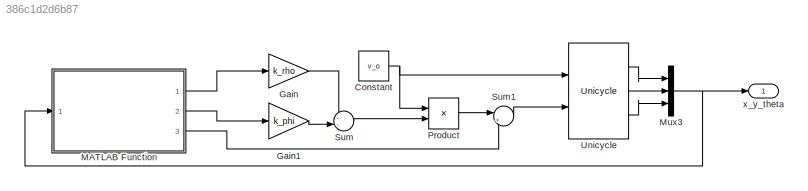
MODEL slx_386c1d2d6b87
KIND model
CONFIG AbsTol = auto
CONFIG EnableMultiTasking = off
CONFIG FixedStep = auto
CONFIG MaxStep = auto
CONFIG MinStep = auto
CONFIG RelTol = 1e-3
CONFIG SampleTimeConstraint = Unconstrained
CONFIG SolverName = VariableStepAuto
CONFIG StartTime = 0.0
CONFIG StopTime = 10.0
BLOCK [Constant] Constant
  SampleTime = 0.02
  Value = v_o
  VectorParams1D = off
BLOCK [Gain] Gain
  Gain = k_rho
BLOCK [Gain] Gain1
  Gain = k_phi
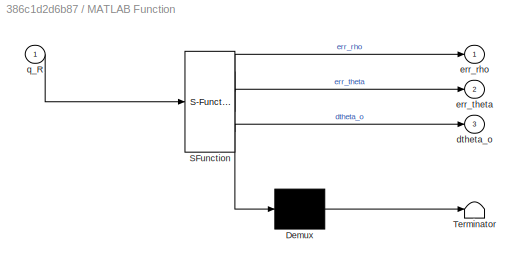
BLOCK [SubSystem] MATLAB Function
  ErrorFcn = Stateflow.Translate.translate
  PermitHierarchicalResolution = ExplicitOnly
  Ports = [1, 3]
  RequestExecContextInheritance = off
  SFBlockType = MATLAB Function
  TreatAsAtomicUnit = on
BLOCK [Demux] MATLAB Function/ Demux 
  Outputs = 1
  Ports = [1, 1]
BLOCK [S-Function] MATLAB Function/ SFunction 
  EnableBusSupport = on
  FunctionName = sf_sfun
  Parameters = rho_o
  PortCounts = [1 4]
  Ports = [1, 4]
  SFcnIsStateOwnerBlock = off
  SFunctionDeploymentMode = off
  Tag = Stateflow S-Function 2
BLOCK [Terminator] MATLAB Function/ Terminator 
BLOCK [Outport] MATLAB Function/dtheta_o
  Port = 3
BLOCK [Outport] MATLAB Function/err_rho
BLOCK [Outport] MATLAB Function/err_theta
  Port = 2
BLOCK [Inport] MATLAB Function/q_R
BLOCK [Mux] Mux3
  DisplayOption = bar
  Inputs = 3
  Ports = [3, 1]
BLOCK [Product] Product
  Ports = [2, 1]
BLOCK [Sum] Sum
  Inputs = --|
  Ports = [2, 1]
BLOCK [Sum] Sum1
  Inputs = |++
  Ports = [2, 1]
BLOCK [Reference] Unicycle  REF=roblocks/Vehicles/Unicycle  (lib defined in mdl_2a292b13c81b, mdl_69400f8cfe22, +12 more)
  Ports = [2, 3]
  SourceBlock = roblocks/Vehicles/Unicycle
BLOCK [Outport] x_y_theta
  VectorParamsAs1DForOutWhenUnconnected = off
NET Constant:1 -> Product:1, Unicycle:1
LINE Gain1:1 -> Sum:2
LINE Gain:1 -> Sum:1
LINE MATLAB Function:1 -> Gain:1
LINE MATLAB Function:2 -> Gain1:1
LINE MATLAB Function:3 -> Sum1:2
NET Mux3:1 -> MATLAB Function:1, x_y_theta:1
LINE Product:1 -> Sum1:1
LINE Sum1:1 -> Unicycle:2
LINE Sum:1 -> Product:2
LINE Unicycle:1 -> Mux3:1
LINE Unicycle:2 -> Mux3:2
LINE Unicycle:3 -> Mux3:3
note: NET lines group one-source signal fan-out (src -> all destinations, sorted); 1:1 wires keep LINE
CHART MATLAB Function states=1 transitions=1
  STATE_LABEL 'eML_blk_kernel()'
  STATE_LABEL 'SCRIPT:\nfunction [err_rho, err_theta, dtheta_o] = path_dynamics(q_R, rho_o)\n    [err_rho, err_theta, dtheta_o] = path_dynamics(q_R, rho_o);\nend'
CHART  states=0 transitions=0
